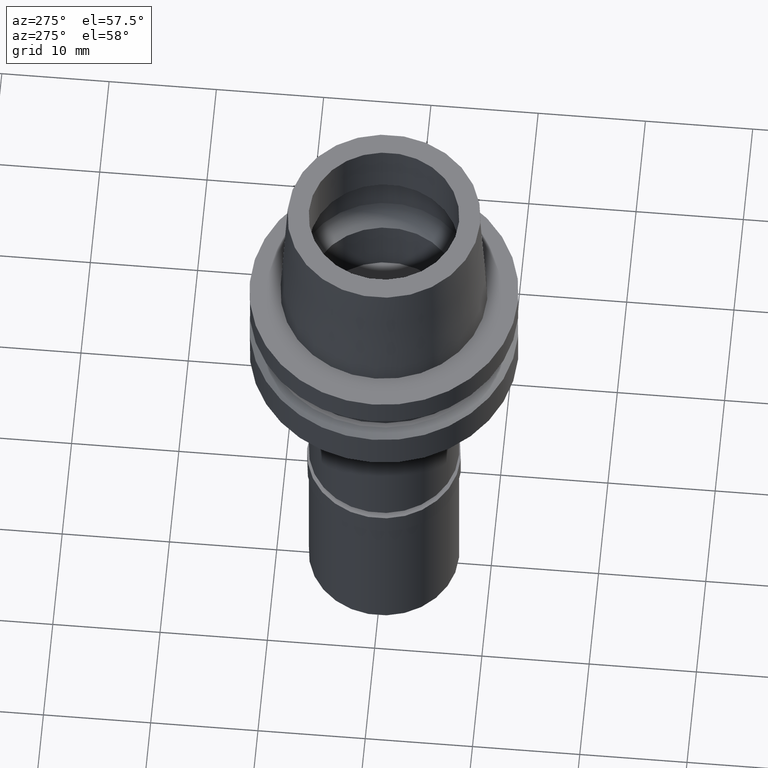
[diagram: clean part render]
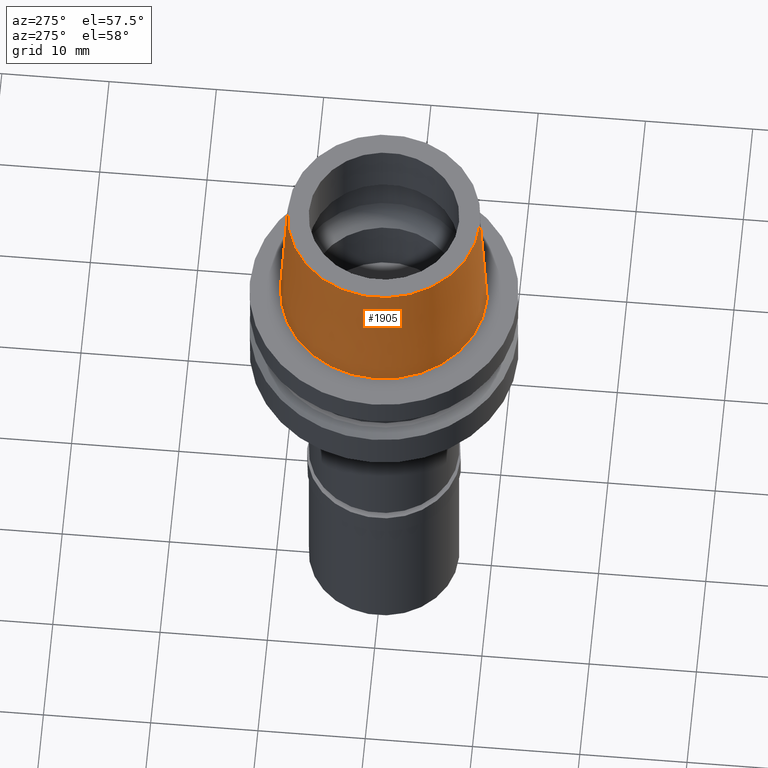
[diagram: same view with one face highlighted and labeled with its STEP entity id]
A machine part, auxiliary view. The second image highlights one B-rep face of the part: STEP entity #1905.
In plain terms, the highlighted conical surface has half-angle 2.862 deg.
Its self-contained STEP definition (entity closure, byte-faithful):
#3 = VECTOR ( 'NONE', #2427, 999.9999999999998863 ) ;
#141 = DIRECTION ( 'NONE',  ( 0.0000000000000000000, 0.0000000000000000000, -1.000000000000000000 ) ) ;
#215 = VECTOR ( 'NONE', #1980, 999.9999999999998863 ) ;
#274 = CARTESIAN_POINT ( 'NONE',  ( 0.0000000000000000000, 8.975000960130000038, 13.00000000000000000 ) ) ;
#424 = VERTEX_POINT ( 'NONE', #274 ) ;
#519 = DIRECTION ( 'NONE',  ( 0.0000000000000000000, 0.0000000000000000000, -1.000000000000000000 ) ) ;
#582 = EDGE_CURVE ( 'NONE', #1589, #424, #2633, .T. ) ;
#786 = CARTESIAN_POINT ( 'NONE',  ( 0.0000000000000000000, 0.0000000000000000000, 2.557953848736000191E-13 ) ) ;
#864 = LINE ( 'NONE', #1896, #3 ) ;
#904 = CARTESIAN_POINT ( 'NONE',  ( 0.0000000000000000000, -9.624999771398000448, 1.332267629550000037E-13 ) ) ;
#945 = DIRECTION ( 'NONE',  ( 0.0000000000000000000, -1.000000000000000000, 0.0000000000000000000 ) ) ;
#1012 = VERTEX_POINT ( 'NONE', #2556 ) ;
#1125 = EDGE_CURVE ( 'NONE', #1012, #2639, #2043, .T. ) ;
#1272 = ORIENTED_EDGE ( 'NONE', *, *, #582, .T. ) ;
#1297 = CARTESIAN_POINT ( 'NONE',  ( 0.0000000000000000000, -8.975000960130000038, 13.00000000000000000 ) ) ;
#1377 = EDGE_LOOP ( 'NONE', ( #1416, #2189, #1272, #2232 ) ) ;
#1416 = ORIENTED_EDGE ( 'NONE', *, *, #1125, .T. ) ;
#1423 = AXIS2_PLACEMENT_3D ( 'NONE', #786, #2388, #2416 ) ;
#1589 = VERTEX_POINT ( 'NONE', #2468 ) ;
#1765 = DIRECTION ( 'NONE',  ( 0.0000000000000000000, -1.000000000000000000, 0.0000000000000000000 ) ) ;
#1776 = EDGE_CURVE ( 'NONE', #1589, #2639, #1965, .T. ) ;
#1796 = CARTESIAN_POINT ( 'NONE',  ( 0.0000000000000000000, 0.0000000000000000000, 13.00000000000000000 ) ) ;
#1803 = FACE_OUTER_BOUND ( 'NONE', #1377, .T. ) ;
#1896 = CARTESIAN_POINT ( 'NONE',  ( 0.0000000000000000000, 8.975000960130000038, 13.00000000000000000 ) ) ;
#1905 = ADVANCED_FACE ( 'NONE', ( #1803 ), #1983, .T. ) ;
#1965 = LINE ( 'NONE', #1297, #215 ) ;
#1980 = DIRECTION ( 'NONE',  ( 0.0000000000000000000, -0.04993752584484958956, -0.9987523434327927330 ) ) ;
#1983 = CONICAL_SURFACE ( 'NONE', #2284, 9.300000365763999355, 0.04995830450907576964 ) ;
#1992 = CARTESIAN_POINT ( 'NONE',  ( 0.0000000000000000000, 0.0000000000000000000, 6.500000000000000000 ) ) ;
#2043 = CIRCLE ( 'NONE', #1423, 9.624999771398000448 ) ;
#2078 = AXIS2_PLACEMENT_3D ( 'NONE', #1796, #141, #1765 ) ;
#2189 = ORIENTED_EDGE ( 'NONE', *, *, #1776, .F. ) ;
#2232 = ORIENTED_EDGE ( 'NONE', *, *, #2366, .T. ) ;
#2284 = AXIS2_PLACEMENT_3D ( 'NONE', #1992, #519, #945 ) ;
#2366 = EDGE_CURVE ( 'NONE', #424, #1012, #864, .T. ) ;
#2388 = DIRECTION ( 'NONE',  ( 0.0000000000000000000, 0.0000000000000000000, 1.000000000000000000 ) ) ;
#2416 = DIRECTION ( 'NONE',  ( 0.0000000000000000000, 1.000000000000000000, 0.0000000000000000000 ) ) ;
#2427 = DIRECTION ( 'NONE',  ( 0.0000000000000000000, 0.04993752584484958956, -0.9987523434327927330 ) ) ;
#2468 = CARTESIAN_POINT ( 'NONE',  ( 0.0000000000000000000, -8.975000960130000038, 13.00000000000000000 ) ) ;
#2556 = CARTESIAN_POINT ( 'NONE',  ( 0.0000000000000000000, 9.624999771398000448, 1.332267629550000037E-13 ) ) ;
#2633 = CIRCLE ( 'NONE', #2078, 8.975000960130000038 ) ;
#2639 = VERTEX_POINT ( 'NONE', #904 ) ;